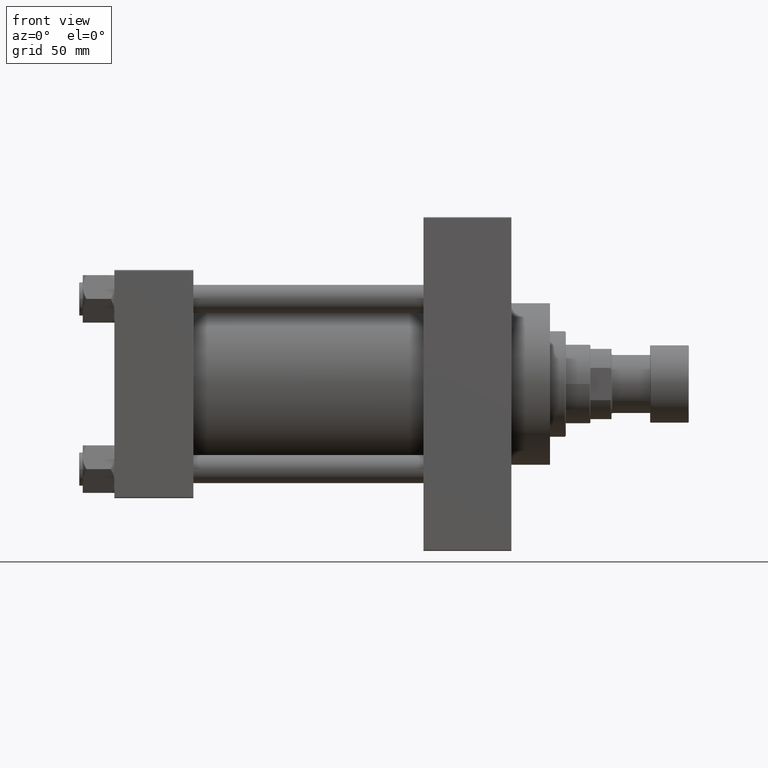
[diagram: clean part render]
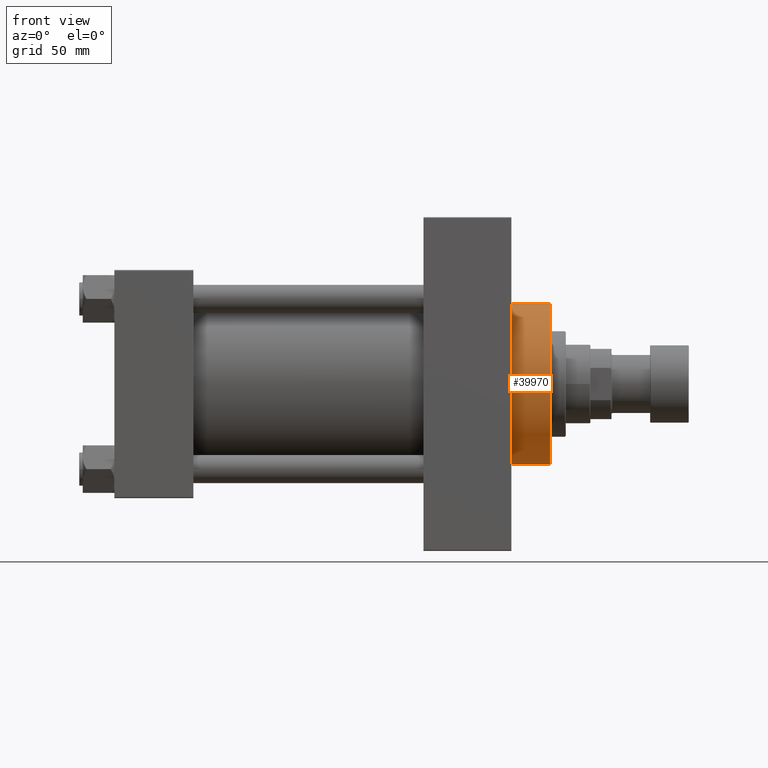
[diagram: same view with one face highlighted and labeled with its STEP entity id]
A machine part, front view. The second image highlights one B-rep face of the part: STEP entity #39970.
In plain terms, the highlighted cylindrical surface (partial cylindrical patch) has radius 46 mm, axis along (-1, -0, -0).
Its self-contained STEP definition (entity closure, byte-faithful):
#959 = DIRECTION ( 'NONE',  ( -1.000000000000000000, -0.000000000000000000, -0.000000000000000000 ) ) ;
#4434 = EDGE_CURVE ( 'NONE', #39975, #37693, #34430, .T. ) ;
#5030 = DIRECTION ( 'NONE',  ( 1.000000000000000000, 0.000000000000000000, 0.000000000000000000 ) ) ;
#7120 = CARTESIAN_POINT ( 'NONE',  ( 247.9999999999999716, 0.000000000000000000, 0.000000000000000000 ) ) ;
#7563 = LINE ( 'NONE', #22457, #38751 ) ;
#8678 = FACE_OUTER_BOUND ( 'NONE', #24845, .T. ) ;
#9668 = DIRECTION ( 'NONE',  ( 0.000000000000000000, 0.000000000000000000, -1.000000000000000000 ) ) ;
#12852 = CARTESIAN_POINT ( 'NONE',  ( 247.9999999999999716, 0.000000000000000000, 0.000000000000000000 ) ) ;
#14341 = VERTEX_POINT ( 'NONE', #14767 ) ;
#14767 = CARTESIAN_POINT ( 'NONE',  ( 225.9999999999999716, 0.000000000000000000, 46.00000000000000000 ) ) ;
#16595 = ORIENTED_EDGE ( 'NONE', *, *, #46736, .T. ) ;
#17215 = CYLINDRICAL_SURFACE ( 'NONE', #41238, 46.00000000000000000 ) ;
#19183 = AXIS2_PLACEMENT_3D ( 'NONE', #12852, #5030, #9668 ) ;
#19581 = VECTOR ( 'NONE', #959, 1000.000000000000000 ) ;
#20070 = VERTEX_POINT ( 'NONE', #28272 ) ;
#20294 = DIRECTION ( 'NONE',  ( 1.000000000000000000, 0.000000000000000000, 0.000000000000000000 ) ) ;
#20878 = DIRECTION ( 'NONE',  ( -1.000000000000000000, -0.000000000000000000, -0.000000000000000000 ) ) ;
#22457 = CARTESIAN_POINT ( 'NONE',  ( 247.9999999999999716, 0.000000000000000000, 46.00000000000000000 ) ) ;
#23410 = CARTESIAN_POINT ( 'NONE',  ( 247.9999999999999716, 5.633375276077824704E-15, -46.00000000000000000 ) ) ;
#24845 = EDGE_LOOP ( 'NONE', ( #37443, #36639, #16595, #39768 ) ) ;
#27881 = DIRECTION ( 'NONE',  ( 0.000000000000000000, 0.000000000000000000, -1.000000000000000000 ) ) ;
#28272 = CARTESIAN_POINT ( 'NONE',  ( 247.9999999999999716, 0.000000000000000000, 46.00000000000000000 ) ) ;
#28458 = DIRECTION ( 'NONE',  ( 0.000000000000000000, 0.000000000000000000, 1.000000000000000000 ) ) ;
#32726 = AXIS2_PLACEMENT_3D ( 'NONE', #34490, #20294, #27881 ) ;
#33379 = EDGE_CURVE ( 'NONE', #20070, #39975, #34027, .T. ) ;
#34027 = CIRCLE ( 'NONE', #19183, 46.00000000000000000 ) ;
#34430 = LINE ( 'NONE', #23410, #19581 ) ;
#34490 = CARTESIAN_POINT ( 'NONE',  ( 225.9999999999999716, 0.000000000000000000, 0.000000000000000000 ) ) ;
#36639 = ORIENTED_EDGE ( 'NONE', *, *, #33379, .F. ) ;
#36686 = CARTESIAN_POINT ( 'NONE',  ( 247.9999999999999716, 5.633375276077824704E-15, -46.00000000000000000 ) ) ;
#37366 = DIRECTION ( 'NONE',  ( -1.000000000000000000, -0.000000000000000000, -0.000000000000000000 ) ) ;
#37443 = ORIENTED_EDGE ( 'NONE', *, *, #4434, .F. ) ;
#37693 = VERTEX_POINT ( 'NONE', #44415 ) ;
#38751 = VECTOR ( 'NONE', #37366, 1000.000000000000000 ) ;
#39768 = ORIENTED_EDGE ( 'NONE', *, *, #41823, .T. ) ;
#39970 = ADVANCED_FACE ( 'NONE', ( #8678 ), #17215, .T. ) ;
#39975 = VERTEX_POINT ( 'NONE', #36686 ) ;
#41238 = AXIS2_PLACEMENT_3D ( 'NONE', #7120, #20878, #28458 ) ;
#41823 = EDGE_CURVE ( 'NONE', #14341, #37693, #47561, .T. ) ;
#44415 = CARTESIAN_POINT ( 'NONE',  ( 225.9999999999999716, 5.633375276077824704E-15, -46.00000000000000000 ) ) ;
#46736 = EDGE_CURVE ( 'NONE', #20070, #14341, #7563, .T. ) ;
#47561 = CIRCLE ( 'NONE', #32726, 46.00000000000000000 ) ;